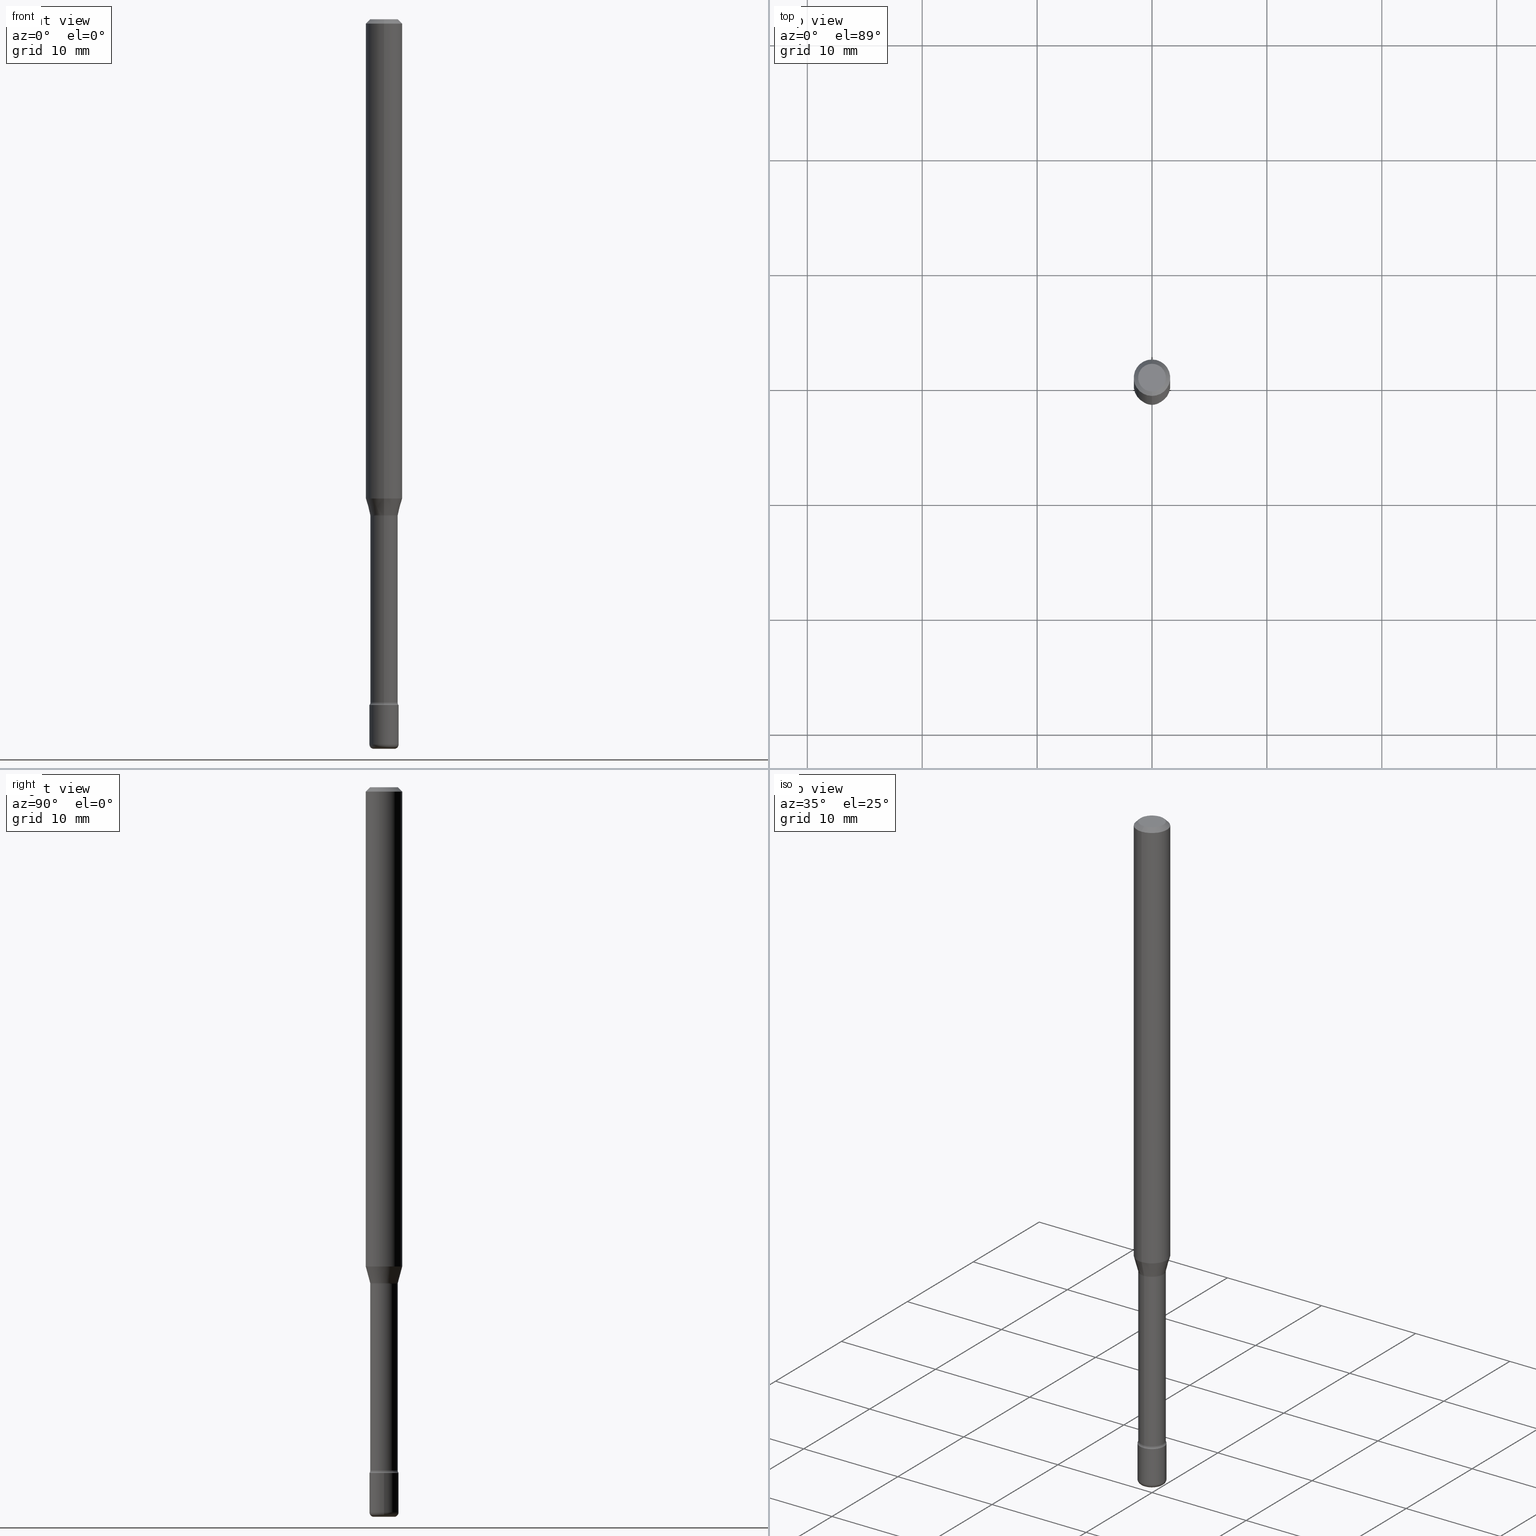
[diagram: canonical four-view strip — front | top / right | iso, engineering-drawing reading convention]
A machine part, canonical four-view strip (front | top / right | iso — engineering-drawing reading convention). The complete STEP part file that produces these views, byte-faithful:
ISO-10303-21;
HEADER;
FILE_DESCRIPTION (( 'STEP AP203' ),
    '1' );
FILE_NAME ('08864.STEP',
    '2024-03-06T20:06:44',
    ( '' ),
    ( '' ),
    'SwSTEP 2.0',
    'SolidWorks 2023',
    '' );
FILE_SCHEMA (( 'CONFIG_CONTROL_DESIGN' ));
ENDSEC;

DATA;
#1 = DIRECTION ( 'NONE',  ( -6.982962677686265133E-15, -1.000000000000000000, 5.463695987328526437E-15 ) ) ;
#2 = CARTESIAN_POINT ( 'NONE',  ( 0.000000000000000000, 0.000000000000000000, 0.000000000000000000 ) ) ;
#3 = TOROIDAL_SURFACE ( 'NONE', #170, 0.03500000000000000333, 0.01500000000000039496 ) ;
#4 = APPROVAL_ROLE ( '' ) ;
#5 = FACE_OUTER_BOUND ( 'NONE', #432, .T. ) ;
#6 = EDGE_CURVE ( 'NONE', #466, #341, #266, .T. ) ;
#7 = DIRECTION ( 'NONE',  ( -2.445468806185136597E-29, 3.491481338843145583E-15, 1.000000000000000000 ) ) ;
#8 = EDGE_LOOP ( 'NONE', ( #225, #57, #90, #558 ) ) ;
#9 = DATE_TIME_ROLE ( 'classification_date' ) ;
#10 = PLANE ( 'NONE',  #459 ) ;
#11 = EDGE_CURVE ( 'NONE', #84, #160, #204, .T. ) ;
#12 = AXIS2_PLACEMENT_3D ( 'NONE', #110, #457, #63 ) ;
#13 = CARTESIAN_POINT ( 'NONE',  ( -1.169113584055446105E-44, 1.669184350826100908E-30, 4.780733988912460139E-16 ) ) ;
#14 = ORIENTED_EDGE ( 'NONE', *, *, #350, .T. ) ;
#15 = ADVANCED_FACE ( 'NONE', ( #46 ), #229, .T. ) ;
#16 = DIRECTION ( 'NONE',  ( -2.445541428082492260E-29, 3.491377340152750324E-15, 1.000000000000000000 ) ) ;
#17 = DIRECTION ( 'NONE',  ( -6.982962677686266711E-15, -1.000000000000000000, 3.491481338843145583E-15 ) ) ;
#18 = DIRECTION ( 'NONE',  ( 1.000000000000000000, -7.105427357601001070E-15, 4.926314234925449358E-29 ) ) ;
#19 = VECTOR ( 'NONE', #181, 39.37007874015748143 ) ;
#20 = CARTESIAN_POINT ( 'NONE',  ( 3.446132268437060393E-16, 0.04699999999999183303, -2.341000000000000192 ) ) ;
#21 = CIRCLE ( 'NONE', #66, 0.04700000000000000705 ) ;
#22 = CC_DESIGN_APPROVAL ( #62, ( #132 ) ) ;
#23 = DIRECTION ( 'NONE',  ( -2.445541428082492260E-29, 3.491377340152750324E-15, 1.000000000000000000 ) ) ;
#24 = DIRECTION ( 'NONE',  ( 1.000000000000000000, -6.982962677686275388E-15, 0.000000000000000000 ) ) ;
#25 = CARTESIAN_POINT ( 'NONE',  ( 3.840629472727447874E-16, 0.04750000000000000749, -1.929345507921888683E-16 ) ) ;
#26 = PLANE ( 'NONE',  #555 ) ;
#27 = EDGE_LOOP ( 'NONE', ( #71, #482, #93, #513 ) ) ;
#28 = CARTESIAN_POINT ( 'NONE',  ( 4.152755561837019932E-29, -5.928681682223378846E-15, -1.698092501787273001 ) ) ;
#29 = CONICAL_SURFACE ( 'NONE', #390, 0.06250000000000000000, 0.7853981633974480570 ) ;
#30 = CC_DESIGN_SECURITY_CLASSIFICATION ( #392, ( #132 ) ) ;
#31 = ORIENTED_EDGE ( 'NONE', *, *, #296, .F. ) ;
#32 = DIRECTION ( 'NONE',  ( 2.445541428082492260E-29, -3.491377340152750324E-15, -1.000000000000000000 ) ) ;
#33 = EDGE_CURVE ( 'NONE', #138, #429, #403, .T. ) ;
#34 = ORIENTED_EDGE ( 'NONE', *, *, #142, .F. ) ;
#35 = APPROVAL_STATUS ( 'not_yet_approved' ) ;
#36 = EDGE_CURVE ( 'NONE', #429, #304, #105, .T. ) ;
#37 = ORIENTED_EDGE ( 'NONE', *, *, #296, .T. ) ;
#38 = CC_DESIGN_DATE_AND_TIME_ASSIGNMENT ( #542, #499, ( #279 ) ) ;
#39 = ORIENTED_EDGE ( 'NONE', *, *, #253, .F. ) ;
#40 = CIRCLE ( 'NONE', #338, 0.06250000000000000000 ) ;
#41 = ORIENTED_EDGE ( 'NONE', *, *, #36, .F. ) ;
#42 = APPLICATION_PROTOCOL_DEFINITION ( 'international standard', 'config_control_design', 1994, #353 ) ;
#43 = DIRECTION ( 'NONE',  ( -6.982962677686265922E-15, -1.000000000000000000, 5.749913744050246675E-15 ) ) ;
#44 = DIRECTION ( 'NONE',  ( 1.000000000000000000, -6.982962677686265922E-15, 4.876176775795936353E-29 ) ) ;
#45 = COORDINATED_UNIVERSAL_TIME_OFFSET ( 5, 0, .BEHIND. ) ;
#46 = FACE_OUTER_BOUND ( 'NONE', #564, .T. ) ;
#47 = AXIS2_PLACEMENT_3D ( 'NONE', #156, #515, #283 ) ;
#48 = PERSON_AND_ORGANIZATION ( #468, #446 ) ;
#49 = EDGE_CURVE ( 'NONE', #556, #233, #286, .T. ) ;
#50 = EDGE_LOOP ( 'NONE', ( #393, #295, #349, #215 ) ) ;
#51 = PERSON_AND_ORGANIZATION_ROLE ( 'design_supplier' ) ;
#52 = ORIENTED_EDGE ( 'NONE', *, *, #402, .T. ) ;
#53 = DIRECTION ( 'NONE',  ( -2.445541428082492260E-29, 3.491377340152750324E-15, 1.000000000000000000 ) ) ;
#54 = DIRECTION ( 'NONE',  ( -1.000000000000000000, 6.982962677686265922E-15, -4.876176775795935793E-29 ) ) ;
#55 = ADVANCED_FACE ( 'NONE', ( #447 ), #29, .T. ) ;
#56 = CIRCLE ( 'NONE', #382, 0.03500000000000000333 ) ;
#57 = ORIENTED_EDGE ( 'NONE', *, *, #362, .T. ) ;
#58 = FACE_OUTER_BOUND ( 'NONE', #166, .T. ) ;
#59 = DIRECTION ( 'NONE',  ( -6.982962677686265922E-15, -1.000000000000000000, 3.491377340152751112E-15 ) ) ;
#60 = CARTESIAN_POINT ( 'NONE',  ( 5.746851694535070554E-29, -8.204981146281391784E-15, -2.350000000000000089 ) ) ;
#61 = CARTESIAN_POINT ( 'NONE',  ( 6.076989983370064174E-29, -8.676331127025216680E-15, -2.484999999999999876 ) ) ;
#62 = APPROVAL ( #96, 'UNSPECIFIED' ) ;
#63 = DIRECTION ( 'NONE',  ( -6.982962677686265133E-15, -1.000000000000000000, 5.463695987328526437E-15 ) ) ;
#64 = CLOSED_SHELL ( 'NONE', ( #201, #507, #473, #569, #235, #306, #331, #342, #55, #321, #384, #243, #269, #524 ) ) ;
#65 = CARTESIAN_POINT ( 'NONE',  ( -1.169113584055446105E-44, 1.669184350826100908E-30, 4.780733988912460139E-16 ) ) ;
#66 = AXIS2_PLACEMENT_3D ( 'NONE', #194, #244, #456 ) ;
#67 = AXIS2_PLACEMENT_3D ( 'NONE', #532, #470, #85 ) ;
#68 = DIRECTION ( 'NONE',  ( -6.982962677686265922E-15, -1.000000000000000000, 3.491377340152750324E-15 ) ) ;
#69 = DIRECTION ( 'NONE',  ( -6.982962677686265922E-15, -1.000000000000000000, 5.749913744050246675E-15 ) ) ;
#70 = CYLINDRICAL_SURFACE ( 'NONE', #540, 0.04700000000000000705 ) ;
#71 = ORIENTED_EDGE ( 'NONE', *, *, #362, .F. ) ;
#72 = FACE_OUTER_BOUND ( 'NONE', #27, .T. ) ;
#73 = ORIENTED_EDGE ( 'NONE', *, *, #561, .F. ) ;
#74 = EDGE_CURVE ( 'NONE', #304, #429, #364, .T. ) ;
#75 =( CONVERSION_BASED_UNIT ( 'INCH', #256 ) LENGTH_UNIT ( ) NAMED_UNIT ( #81 ) );
#76 = AXIS2_PLACEMENT_3D ( 'NONE', #371, #102, #453 ) ;
#77 = DIRECTION ( 'NONE',  ( -2.445468806185136597E-29, 3.491481338843145583E-15, 1.000000000000000000 ) ) ;
#78 = CIRCLE ( 'NONE', #67, 0.04750000000000000749 ) ;
#79 = ORIENTED_EDGE ( 'NONE', *, *, #153, .T. ) ;
#80 = PERSON_AND_ORGANIZATION ( #468, #446 ) ;
#81 = DIMENSIONAL_EXPONENTS ( 1.000000000000000000, 0.000000000000000000, 0.000000000000000000, 0.000000000000000000, 0.000000000000000000, 0.000000000000000000, 0.000000000000000000 ) ;
#82 = ORIENTED_EDGE ( 'NONE', *, *, #74, .T. ) ;
#83 = DIRECTION ( 'NONE',  ( -6.982962677686265922E-15, -1.000000000000000000, 3.491377340152750324E-15 ) ) ;
#84 = VERTEX_POINT ( 'NONE', #355 ) ;
#85 = DIRECTION ( 'NONE',  ( -6.982962677686265133E-15, -1.000000000000000000, 3.491377340152749929E-15 ) ) ;
#86 = AXIS2_PLACEMENT_3D ( 'NONE', #326, #410, #54 ) ;
#87 = VERTEX_POINT ( 'NONE', #131 ) ;
#88 = ORIENTED_EDGE ( 'NONE', *, *, #258, .F. ) ;
#89 = PERSON_AND_ORGANIZATION ( #468, #446 ) ;
#90 = ORIENTED_EDGE ( 'NONE', *, *, #137, .F. ) ;
#91 = EDGE_CURVE ( 'NONE', #336, #138, #380, .T. ) ;
#92 = ORIENTED_EDGE ( 'NONE', *, *, #101, .F. ) ;
#93 = ORIENTED_EDGE ( 'NONE', *, *, #197, .T. ) ;
#94 = AXIS2_PLACEMENT_3D ( 'NONE', #247, #463, #69 ) ;
#95 = AXIS2_PLACEMENT_3D ( 'NONE', #354, #568, #559 ) ;
#96 = APPROVAL_STATUS ( 'not_yet_approved' ) ;
#97 = EDGE_LOOP ( 'NONE', ( #52, #562, #313, #210 ) ) ;
#98 = DIRECTION ( 'NONE',  ( -2.445541428082492260E-29, 3.491377340152750324E-15, 1.000000000000000000 ) ) ;
#99 = APPROVAL_DATE_TIME ( #443, #62 ) ;
#100 = ADVANCED_FACE ( 'NONE', ( #221 ), #397, .T. ) ;
#101 = EDGE_CURVE ( 'NONE', #87, #139, #177, .T. ) ;
#102 = DIRECTION ( 'NONE',  ( -2.445468806185136597E-29, 3.491481338843145583E-15, 1.000000000000000000 ) ) ;
#103 = CALENDAR_DATE ( 2024, 6, 3 ) ;
#104 = DIRECTION ( 'NONE',  ( -2.445468806185136597E-29, 3.491481338843145583E-15, 1.000000000000000000 ) ) ;
#105 = CIRCLE ( 'NONE', #316, 0.04700000000000000705 ) ;
#106 = AXIS2_PLACEMENT_3D ( 'NONE', #411, #236, #188 ) ;
#107 = CARTESIAN_POINT ( 'NONE',  ( -3.281992458511972621E-16, -0.04700000000000817413, -2.340999999999999748 ) ) ;
#108 = EDGE_CURVE ( 'NONE', #476, #139, #366, .T. ) ;
#109 = CARTESIAN_POINT ( 'NONE',  ( 4.440892098500625669E-16, 0.06250000000000000000, 2.598623151316991680E-16 ) ) ;
#110 = CARTESIAN_POINT ( 'NONE',  ( 5.747022355993856728E-29, -8.204736749358963615E-15, -2.350000000000000089 ) ) ;
#111 = DIRECTION ( 'NONE',  ( -2.445541428082492260E-29, 3.491377340152750324E-15, 1.000000000000000000 ) ) ;
#112 = DIRECTION ( 'NONE',  ( 6.982962677686265922E-15, 1.000000000000000000, -3.491377340152750324E-15 ) ) ;
#113 = CIRCLE ( 'NONE', #12, 0.05000000000000000278 ) ;
#114 = AXIS2_PLACEMENT_3D ( 'NONE', #351, #32, #484 ) ;
#115 = EDGE_LOOP ( 'NONE', ( #73, #345, #248, #273 ) ) ;
#116 = DIRECTION ( 'NONE',  ( -2.445541428082492260E-29, 3.491377340152750324E-15, 1.000000000000000000 ) ) ;
#117 = EDGE_CURVE ( 'NONE', #255, #87, #552, .T. ) ;
#118 = ORIENTED_EDGE ( 'NONE', *, *, #108, .T. ) ;
#119 = DIRECTION ( 'NONE',  ( -2.445541428082492260E-29, 3.491377340152750324E-15, 1.000000000000000000 ) ) ;
#120 = ORIENTED_EDGE ( 'NONE', *, *, #399, .F. ) ;
#121 = CIRCLE ( 'NONE', #365, 0.05000000000000000278 ) ;
#122 = DIRECTION ( 'NONE',  ( -2.445468806185136877E-29, 3.491481338843145188E-15, 1.000000000000000000 ) ) ;
#123 = LOCAL_TIME ( 15, 6, 44.00000000000000000, #347 ) ;
#124 = EDGE_LOOP ( 'NONE', ( #14, #162, #41, #469 ) ) ;
#125 = DATE_AND_TIME ( #525, #123 ) ;
#126 = CARTESIAN_POINT ( 'NONE',  ( 4.152755561837019932E-29, -5.928681682223378846E-15, -1.698092501787273001 ) ) ;
#127 = ORIENTED_EDGE ( 'NONE', *, *, #566, .T. ) ;
#128 = FACE_OUTER_BOUND ( 'NONE', #115, .T. ) ;
#129 = ORIENTED_EDGE ( 'NONE', *, *, #173, .T. ) ;
#130 = TOROIDAL_SURFACE ( 'NONE', #407, 0.06200000000000004813, 0.01500000000000004281 ) ;
#131 = CARTESIAN_POINT ( 'NONE',  ( -4.364351673553512403E-16, -0.06250000000000568989, -1.642153212482682312 ) ) ;
#132 = PRODUCT_DEFINITION_FORMATION_WITH_SPECIFIED_SOURCE ( 'ANY', '', #546, .NOT_KNOWN. ) ;
#133 = APPLICATION_PROTOCOL_DEFINITION ( 'international standard', 'config_control_design', 1994, #536 ) ;
#134 = ADVANCED_FACE ( 'NONE', ( #369 ), #10, .T. ) ;
#135 = ORIENTED_EDGE ( 'NONE', *, *, #219, .F. ) ;
#136 = DIRECTION ( 'NONE',  ( 6.982962677686265922E-15, 1.000000000000000000, -3.483106191921935554E-15 ) ) ;
#137 = EDGE_CURVE ( 'NONE', #341, #389, #212, .T. ) ;
#138 = VERTEX_POINT ( 'NONE', #107 ) ;
#139 = VERTEX_POINT ( 'NONE', #237 ) ;
#140 = UNCERTAINTY_MEASURE_WITH_UNIT (LENGTH_MEASURE( 1.000000000000000082E-05 ), #75, 'distance_accuracy_value', 'NONE');
#141 = VECTOR ( 'NONE', #169, 39.37007874015748143 ) ;
#142 = EDGE_CURVE ( 'NONE', #336, #304, #412, .T. ) ;
#143 = CARTESIAN_POINT ( 'NONE',  ( -4.364351673553916201E-16, -0.06250000000000000000, 6.962844826507930571E-16 ) ) ;
#144 = APPROVAL_ROLE ( '' ) ;
#145 = ORIENTED_EDGE ( 'NONE', *, *, #219, .T. ) ;
#146 = DIRECTION ( 'NONE',  ( -2.438088387897960049E-29, 3.491481338843145188E-15, 1.000000000000000000 ) ) ;
#147 = DESIGN_CONTEXT ( 'detailed design', #536, 'design' ) ;
#148 = CARTESIAN_POINT ( 'NONE',  ( 3.668312142123745187E-31, -5.237066010229135864E-17, -0.01500000000000002720 ) ) ;
#149 = AXIS2_PLACEMENT_3D ( 'NONE', #303, #335, #478 ) ;
#150 = CC_DESIGN_APPROVAL ( #176, ( #279 ) ) ;
#151 = CARTESIAN_POINT ( 'NONE',  ( 6.629452896351596937E-46, -9.454610252272620531E-32, -2.709412713493322385E-17 ) ) ;
#152 = LINE ( 'NONE', #143, #373 ) ;
#153 = EDGE_CURVE ( 'NONE', #336, #556, #270, .T. ) ;
#154 = DIRECTION ( 'NONE',  ( -2.445541428082491980E-29, 3.491377340152750324E-15, 1.000000000000000000 ) ) ;
#155 = DIRECTION ( 'NONE',  ( 1.000000000000000000, -6.982962677686265922E-15, 4.876176775795935793E-29 ) ) ;
#156 = CARTESIAN_POINT ( 'NONE',  ( 4.152755561837019932E-29, -5.928681682223378846E-15, -1.698092501787273001 ) ) ;
#157 = ORIENTED_EDGE ( 'NONE', *, *, #108, .F. ) ;
#158 = CIRCLE ( 'NONE', #327, 0.03500000000000000333 ) ;
#159 = DIRECTION ( 'NONE',  ( -6.982962677686265922E-15, -1.000000000000000000, 5.749913744050246675E-15 ) ) ;
#160 = VERTEX_POINT ( 'NONE', #190 ) ;
#161 = FACE_OUTER_BOUND ( 'NONE', #526, .T. ) ;
#162 = ORIENTED_EDGE ( 'NONE', *, *, #142, .T. ) ;
#163 = FACE_OUTER_BOUND ( 'NONE', #315, .T. ) ;
#164 = DIRECTION ( 'NONE',  ( -2.445541428082492260E-29, 3.491377340152750324E-15, 1.000000000000000000 ) ) ;
#165 = ADVANCED_FACE ( 'NONE', ( #509 ), #184, .T. ) ;
#166 = EDGE_LOOP ( 'NONE', ( #120, #31 ) ) ;
#167 = APPROVAL_ROLE ( '' ) ;
#168 = AXIS2_PLACEMENT_3D ( 'NONE', #65, #520, #394 ) ;
#169 = DIRECTION ( 'NONE',  ( -2.445468806185136877E-29, 3.491481338843145188E-15, 1.000000000000000000 ) ) ;
#170 = AXIS2_PLACEMENT_3D ( 'NONE', #391, #428, #252 ) ;
#171 = ORIENTED_EDGE ( 'NONE', *, *, #36, .T. ) ;
#172 = ORIENTED_EDGE ( 'NONE', *, *, #153, .F. ) ;
#173 = EDGE_CURVE ( 'NONE', #200, #388, #121, .T. ) ;
#174 = DIRECTION ( 'NONE',  ( 2.445541428082492260E-29, -3.491377340152750324E-15, -1.000000000000000000 ) ) ;
#175 = MECHANICAL_CONTEXT ( 'NONE', #353, 'mechanical' ) ;
#176 = APPROVAL ( #35, 'UNSPECIFIED' ) ;
#177 = CIRCLE ( 'NONE', #414, 0.06250000000000000000 ) ;
#178 = AXIS2_PLACEMENT_3D ( 'NONE', #151, #505, #281 ) ;
#179 = CARTESIAN_POINT ( 'NONE',  ( 4.162249852294645006E-29, -5.942236206462443190E-15, -1.701974787463810923 ) ) ;
#180 = AXIS2_PLACEMENT_3D ( 'NONE', #217, #474, #263 ) ;
#181 = DIRECTION ( 'NONE',  ( -2.445541428082492260E-29, 3.491377340152750324E-15, 1.000000000000000000 ) ) ;
#182 = DIRECTION ( 'NONE',  ( -2.445541428082492260E-29, 3.491377340152750324E-15, 1.000000000000000000 ) ) ;
#183 = DIRECTION ( 'NONE',  ( -6.982962677686265922E-15, -1.000000000000000000, 4.370956789862821150E-15 ) ) ;
#184 = TOROIDAL_SURFACE ( 'NONE', #76, 0.03500000000000000333, 0.01500000000000039496 ) ;
#185 = CC_DESIGN_APPROVAL ( #511, ( #392 ) ) ;
#186 = CALENDAR_DATE ( 2024, 6, 3 ) ;
#187 = DIRECTION ( 'NONE',  ( -2.445541428082492260E-29, 3.491377340152750324E-15, 1.000000000000000000 ) ) ;
#188 = DIRECTION ( 'NONE',  ( -6.982962677686265922E-15, -1.000000000000000000, 3.491377340152750324E-15 ) ) ;
#189 = EDGE_CURVE ( 'NONE', #255, #429, #531, .T. ) ;
#190 = CARTESIAN_POINT ( 'NONE',  ( -0.05000000000000020400, -8.321059759145164694E-15, -2.484999999999999876 ) ) ;
#191 = AXIS2_PLACEMENT_3D ( 'NONE', #400, #7, #44 ) ;
#192 = AXIS2_PLACEMENT_3D ( 'NONE', #376, #553, #112 ) ;
#193 = APPROVAL_PERSON_ORGANIZATION ( #489, #62, #144 ) ;
#194 = CARTESIAN_POINT ( 'NONE',  ( 5.725012483141114982E-29, -8.173314353297587961E-15, -2.341000000000000192 ) ) ;
#195 = CARTESIAN_POINT ( 'NONE',  ( 4.015953712385151571E-29, -5.733376515121082978E-15, -1.642153212482682756 ) ) ;
#196 = ADVANCED_FACE ( 'NONE', ( #58 ), #280, .T. ) ;
#197 = EDGE_CURVE ( 'NONE', #87, #341, #152, .T. ) ;
#198 = CARTESIAN_POINT ( 'NONE',  ( 4.440892098501030453E-16, 0.06249999999999995143, -0.01500000000000024578 ) ) ;
#199 = DIRECTION ( 'NONE',  ( -6.982962677686265922E-15, -1.000000000000000000, 3.491377340152750324E-15 ) ) ;
#200 = VERTEX_POINT ( 'NONE', #506 ) ;
#201 = ADVANCED_FACE ( 'NONE', ( #234 ), #565, .F. ) ;
#202 = DIRECTION ( 'NONE',  ( 1.000000000000000000, -6.982962677686213068E-15, 0.000000000000000000 ) ) ;
#203 = ORIENTED_EDGE ( 'NONE', *, *, #49, .T. ) ;
#204 = CIRCLE ( 'NONE', #547, 0.01500000000000039496 ) ;
#205 = TOROIDAL_SURFACE ( 'NONE', #106, 0.06200000000000004813, 0.01500000000000004281 ) ;
#206 = CARTESIAN_POINT ( 'NONE',  ( 6.076989983370064174E-29, -8.676331127025216680E-15, -2.484999999999999876 ) ) ;
#207 = ORIENTED_EDGE ( 'NONE', *, *, #216, .T. ) ;
#208 = ORIENTED_EDGE ( 'NONE', *, *, #399, .T. ) ;
#209 = CARTESIAN_POINT ( 'NONE',  ( 5.724842475279404612E-29, -8.173557814231803142E-15, -2.341000000000000192 ) ) ;
#210 = ORIENTED_EDGE ( 'NONE', *, *, #301, .F. ) ;
#211 = FACE_OUTER_BOUND ( 'NONE', #421, .T. ) ;
#212 = CIRCLE ( 'NONE', #539, 0.06250000000000000000 ) ;
#213 = CIRCLE ( 'NONE', #398, 0.05000000000000000278 ) ;
#214 = LOCAL_TIME ( 15, 6, 44.00000000000000000, #401 ) ;
#215 = ORIENTED_EDGE ( 'NONE', *, *, #529, .T. ) ;
#216 = EDGE_CURVE ( 'NONE', #233, #556, #113, .T. ) ;
#217 = CARTESIAN_POINT ( 'NONE',  ( 0.000000000000000000, 0.000000000000000000, 0.000000000000000000 ) ) ;
#218 = VERTEX_POINT ( 'NONE', #500 ) ;
#219 = EDGE_CURVE ( 'NONE', #388, #200, #213, .T. ) ;
#220 =( LENGTH_UNIT ( ) NAMED_UNIT ( * ) SI_UNIT ( $, .METRE. ) );
#221 = FACE_OUTER_BOUND ( 'NONE', #97, .T. ) ;
#222 = CALENDAR_DATE ( 2024, 6, 3 ) ;
#223 = EDGE_LOOP ( 'NONE', ( #486, #118, #92, #289 ) ) ;
#224 = CALENDAR_DATE ( 2024, 6, 3 ) ;
#225 = ORIENTED_EDGE ( 'NONE', *, *, #101, .T. ) ;
#226 = CC_DESIGN_PERSON_AND_ORGANIZATION_ASSIGNMENT ( #89, #323, ( #392 ) ) ;
#227 = ORIENTED_EDGE ( 'NONE', *, *, #359, .F. ) ;
#228 = COORDINATED_UNIVERSAL_TIME_OFFSET ( 5, 0, .BEHIND. ) ;
#229 = CYLINDRICAL_SURFACE ( 'NONE', #191, 0.04999999999999999584 ) ;
#230 = CLOSED_SHELL ( 'NONE', ( #100, #165, #134, #196, #535, #15 ) ) ;
#231 = DIRECTION ( 'NONE',  ( 7.105427357601001859E-15, 1.000000000000000000, 0.000000000000000000 ) ) ;
#232 = AXIS2_PLACEMENT_3D ( 'NONE', #13, #187, #544 ) ;
#233 = VERTEX_POINT ( 'NONE', #404 ) ;
#234 = FACE_OUTER_BOUND ( 'NONE', #343, .T. ) ;
#235 = ADVANCED_FACE ( 'NONE', ( #450 ), #408, .T. ) ;
#236 = DIRECTION ( 'NONE',  ( -2.445541428082492260E-29, 3.491377340152750324E-15, 1.000000000000000000 ) ) ;
#237 = CARTESIAN_POINT ( 'NONE',  ( 4.440892098501028481E-16, 0.06249999999999429623, -1.642153212482682978 ) ) ;
#238 = DIRECTION ( 'NONE',  ( -2.445468806185136597E-29, 3.491481338843145583E-15, 1.000000000000000000 ) ) ;
#239 = CARTESIAN_POINT ( 'NONE',  ( 5.746851694535070554E-29, -8.204981146281391784E-15, -2.350000000000000089 ) ) ;
#240 = AXIS2_PLACEMENT_3D ( 'NONE', #368, #18, #231 ) ;
#241 =( GEOMETRIC_REPRESENTATION_CONTEXT ( 3 ) GLOBAL_UNCERTAINTY_ASSIGNED_CONTEXT ( ( #140 ) ) GLOBAL_UNIT_ASSIGNED_CONTEXT ( ( #75, #433, #259 ) ) REPRESENTATION_CONTEXT ( 'NONE', 'WORKASPACE' ) );
#242 = CARTESIAN_POINT ( 'NONE',  ( -1.169113584055446105E-44, 1.669184350826100908E-30, 4.780733988912460139E-16 ) ) ;
#243 = ADVANCED_FACE ( 'NONE', ( #299 ), #130, .F. ) ;
#244 = DIRECTION ( 'NONE',  ( -2.445541428082492260E-29, 3.491377340152750324E-15, 1.000000000000000000 ) ) ;
#245 = CARTESIAN_POINT ( 'NONE',  ( 6.113672015462842613E-29, -8.728703347107864943E-15, -2.500000000000000000 ) ) ;
#246 = EDGE_LOOP ( 'NONE', ( #300, #292 ) ) ;
#247 = CARTESIAN_POINT ( 'NONE',  ( 4.152755561837019932E-29, -5.928681682223378846E-15, -1.698092501787273001 ) ) ;
#248 = ORIENTED_EDGE ( 'NONE', *, *, #137, .T. ) ;
#249 = AXIS2_PLACEMENT_3D ( 'NONE', #61, #238, #413 ) ;
#250 = CARTESIAN_POINT ( 'NONE',  ( 0.04999999999999999584, -3.491481338843132862E-16, 2.438088387897967896E-30 ) ) ;
#251 = ORIENTED_EDGE ( 'NONE', *, *, #488, .T. ) ;
#252 = DIRECTION ( 'NONE',  ( 1.000000000000000000, -6.982962677686258033E-15, 4.883557194083110098E-29 ) ) ;
#253 = EDGE_CURVE ( 'NONE', #160, #388, #294, .T. ) ;
#254 = FACE_OUTER_BOUND ( 'NONE', #223, .T. ) ;
#255 = VERTEX_POINT ( 'NONE', #377 ) ;
#256 = LENGTH_MEASURE_WITH_UNIT ( LENGTH_MEASURE( 0.02539999999999999897 ), #220 );
#257 = ORIENTED_EDGE ( 'NONE', *, *, #301, .T. ) ;
#258 = EDGE_CURVE ( 'NONE', #138, #233, #549, .T. ) ;
#259 =( NAMED_UNIT ( * ) SI_UNIT ( $, .STERADIAN. ) SOLID_ANGLE_UNIT ( ) );
#260 = CIRCLE ( 'NONE', #445, 0.01500000000000039496 ) ;
#261 = EDGE_CURVE ( 'NONE', #318, #389, #464, .T. ) ;
#262 = DIRECTION ( 'NONE',  ( -1.000000000000000000, 7.105427357600997914E-15, 0.000000000000000000 ) ) ;
#263 = DIRECTION ( 'NONE',  ( 1.000000000000000000, 0.000000000000000000, 0.000000000000000000 ) ) ;
#264 = ORIENTED_EDGE ( 'NONE', *, *, #117, .T. ) ;
#265 = PERSON_AND_ORGANIZATION_ROLE ( 'creator' ) ;
#266 = LINE ( 'NONE', #442, #406 ) ;
#267 = PERSON_AND_ORGANIZATION ( #468, #446 ) ;
#268 = EDGE_LOOP ( 'NONE', ( #129, #145 ) ) ;
#269 = ADVANCED_FACE ( 'NONE', ( #418 ), #70, .T. ) ;
#270 = CIRCLE ( 'NONE', #240, 0.01500000000000003587 ) ;
#271 = DIRECTION ( 'NONE',  ( -6.982962677686265922E-15, -1.000000000000000000, 5.812442539711197800E-15 ) ) ;
#272 = PERSON_AND_ORGANIZATION ( #468, #446 ) ;
#273 = ORIENTED_EDGE ( 'NONE', *, *, #261, .F. ) ;
#274 = CARTESIAN_POINT ( 'NONE',  ( 5.725012483141114982E-29, -8.173314353297587961E-15, -2.341000000000000192 ) ) ;
#275 = DIRECTION ( 'NONE',  ( -2.445468806185136597E-29, 3.491481338843145583E-15, 1.000000000000000000 ) ) ;
#276 = SECURITY_CLASSIFICATION_LEVEL ( 'unclassified' ) ;
#277 = CARTESIAN_POINT ( 'NONE',  ( -4.329436860165069019E-16, -0.06200000000000594619, -1.701974787463810701 ) ) ;
#278 = CIRCLE ( 'NONE', #523, 0.04999999999999999584 ) ;
#279 = PRODUCT_DEFINITION ( 'UNKNOWN', '', #132, #147 ) ;
#280 = PLANE ( 'NONE',  #86 ) ;
#281 = DIRECTION ( 'NONE',  ( -6.982962677686265133E-15, -1.000000000000000000, 3.491377340152749929E-15 ) ) ;
#282 = DIRECTION ( 'NONE',  ( -1.000000000000000000, 6.982962677686265922E-15, -4.883557194083112340E-29 ) ) ;
#283 = DIRECTION ( 'NONE',  ( -6.982962677686265922E-15, -1.000000000000000000, 5.749913744050246675E-15 ) ) ;
#284 = CC_DESIGN_PERSON_AND_ORGANIZATION_ASSIGNMENT ( #448, #51, ( #132 ) ) ;
#285 = DIRECTION ( 'NONE',  ( -6.982962677686267499E-15, -1.000000000000000000, 0.000000000000000000 ) ) ;
#286 = CIRCLE ( 'NONE', #521, 0.05000000000000000278 ) ;
#287 = AXIS2_PLACEMENT_3D ( 'NONE', #126, #481, #43 ) ;
#288 = DIRECTION ( 'NONE',  ( -2.445541428082492260E-29, 3.491377340152750324E-15, 1.000000000000000000 ) ) ;
#289 = ORIENTED_EDGE ( 'NONE', *, *, #117, .F. ) ;
#290 = CARTESIAN_POINT ( 'NONE',  ( 0.03500000000000000333, -8.920734820744236646E-15, -2.484999999999999876 ) ) ;
#291 = DIRECTION ( 'NONE',  ( -6.982962677686265922E-15, -1.000000000000000000, 3.491377340152749929E-15 ) ) ;
#292 = ORIENTED_EDGE ( 'NONE', *, *, #49, .F. ) ;
#293 = CARTESIAN_POINT ( 'NONE',  ( 4.015953712385151571E-29, -5.733376515121082978E-15, -1.642153212482682756 ) ) ;
#294 = LINE ( 'NONE', #344, #141 ) ;
#295 = ORIENTED_EDGE ( 'NONE', *, *, #485, .F. ) ;
#296 = EDGE_CURVE ( 'NONE', #84, #218, #158, .T. ) ;
#297 = CONICAL_SURFACE ( 'NONE', #287, 0.04751111260566399236, 0.2617993877991509066 ) ;
#298 = LOCAL_TIME ( 15, 6, 44.00000000000000000, #320 ) ;
#299 = FACE_OUTER_BOUND ( 'NONE', #381, .T. ) ;
#300 = ORIENTED_EDGE ( 'NONE', *, *, #216, .F. ) ;
#301 = EDGE_CURVE ( 'NONE', #471, #200, #340, .T. ) ;
#302 = APPROVAL_DATE_TIME ( #125, #176 ) ;
#303 = CARTESIAN_POINT ( 'NONE',  ( -4.329436860164915685E-16, -0.06200000000000822215, -2.340999999999999748 ) ) ;
#304 = VERTEX_POINT ( 'NONE', #475 ) ;
#305 = CARTESIAN_POINT ( 'NONE',  ( 3.552713678801077488E-16, 0.04999999999999183570, -2.350000000000000533 ) ) ;
#306 = ADVANCED_FACE ( 'NONE', ( #254 ), #297, .T. ) ;
#307 = ORIENTED_EDGE ( 'NONE', *, *, #359, .T. ) ;
#308 = AXIS2_PLACEMENT_3D ( 'NONE', #314, #98, #271 ) ;
#309 = AXIS2_PLACEMENT_3D ( 'NONE', #293, #288, #383 ) ;
#310 = DIRECTION ( 'NONE',  ( -6.982962677686265922E-15, -1.000000000000000000, 5.812442539711197800E-15 ) ) ;
#311 = APPROVAL_STATUS ( 'not_yet_approved' ) ;
#312 = ORIENTED_EDGE ( 'NONE', *, *, #350, .F. ) ;
#313 = ORIENTED_EDGE ( 'NONE', *, *, #173, .F. ) ;
#314 = CARTESIAN_POINT ( 'NONE',  ( 4.162249852294645006E-29, -5.942236206462443190E-15, -1.701974787463810923 ) ) ;
#315 = EDGE_LOOP ( 'NONE', ( #522, #385, #491, #171 ) ) ;
#316 = AXIS2_PLACEMENT_3D ( 'NONE', #179, #53, #570 ) ;
#317 = VECTOR ( 'NONE', #122, 39.37007874015748143 ) ;
#318 = VERTEX_POINT ( 'NONE', #25 ) ;
#319 = AXIS2_PLACEMENT_3D ( 'NONE', #527, #572, #83 ) ;
#320 = COORDINATED_UNIVERSAL_TIME_OFFSET ( 5, 0, .BEHIND. ) ;
#321 = ADVANCED_FACE ( 'NONE', ( #5 ), #420, .F. ) ;
#322 = CARTESIAN_POINT ( 'NONE',  ( 3.339550858072470388E-16, 0.04700000000000000705, 3.139786639040668225E-16 ) ) ;
#323 = PERSON_AND_ORGANIZATION_ROLE ( 'classification_officer' ) ;
#324 = MANIFOLD_SOLID_BREP ( 'Body-Move/Copy2[2]', #64 ) ;
#325 = DIRECTION ( 'NONE',  ( -6.982962677686265922E-15, -1.000000000000000000, 3.483106191921935554E-15 ) ) ;
#326 = CARTESIAN_POINT ( 'NONE',  ( 2.444036937190804617E-16, 0.03499999999999127420, -2.500000000000000000 ) ) ;
#327 = AXIS2_PLACEMENT_3D ( 'NONE', #245, #77, #560 ) ;
#328 = CONICAL_SURFACE ( 'NONE', #114, 0.06250000000000000000, 0.7853981633974480570 ) ;
#329 = FACE_OUTER_BOUND ( 'NONE', #419, .T. ) ;
#330 = DIRECTION ( 'NONE',  ( -2.445541428082492260E-29, 3.491377340152750324E-15, 1.000000000000000000 ) ) ;
#331 = ADVANCED_FACE ( 'NONE', ( #329 ), #437, .T. ) ;
#332 = DIRECTION ( 'NONE',  ( -2.445468806185136597E-29, 3.491481338843145583E-15, 1.000000000000000000 ) ) ;
#333 = CARTESIAN_POINT ( 'NONE',  ( 3.375867592983882159E-16, 0.04751111260565806654, -1.698092501787273223 ) ) ;
#334 = CARTESIAN_POINT ( 'NONE',  ( -4.364351673553912750E-16, -0.06250000000000005551, -0.01499999999999981036 ) ) ;
#335 = DIRECTION ( 'NONE',  ( -1.000000000000000000, 6.982962677686265922E-15, -4.883557194083112340E-29 ) ) ;
#336 = VERTEX_POINT ( 'NONE', #20 ) ;
#337 = VECTOR ( 'NONE', #387, 39.37007874015748143 ) ;
#338 = AXIS2_PLACEMENT_3D ( 'NONE', #396, #480, #386 ) ;
#339 = LINE ( 'NONE', #109, #512 ) ;
#340 = LINE ( 'NONE', #250, #317 ) ;
#341 = VERTEX_POINT ( 'NONE', #334 ) ;
#342 = ADVANCED_FACE ( 'NONE', ( #72 ), #458, .T. ) ;
#343 = EDGE_LOOP ( 'NONE', ( #227, #127, #82, #360 ) ) ;
#344 = CARTESIAN_POINT ( 'NONE',  ( -0.04999999999999999584, 3.552713678800500634E-16, -2.459467545127452961E-30 ) ) ;
#345 = ORIENTED_EDGE ( 'NONE', *, *, #6, .T. ) ;
#346 = CIRCLE ( 'NONE', #309, 0.06250000000000000000 ) ;
#347 = COORDINATED_UNIVERSAL_TIME_OFFSET ( 5, 0, .BEHIND. ) ;
#348 = LOCAL_TIME ( 15, 6, 44.00000000000000000, #45 ) ;
#349 = ORIENTED_EDGE ( 'NONE', *, *, #261, .T. ) ;
#350 = EDGE_CURVE ( 'NONE', #138, #336, #21, .T. ) ;
#351 = CARTESIAN_POINT ( 'NONE',  ( 3.668312142123745187E-31, -5.237066010229135864E-17, -0.01500000000000002720 ) ) ;
#352 = CARTESIAN_POINT ( 'NONE',  ( 5.747022355993856728E-29, -8.204736749358963615E-15, -2.350000000000000089 ) ) ;
#353 = APPLICATION_CONTEXT ( 'configuration controlled 3d designs of mechanical parts and assemblies' ) ;
#354 = CARTESIAN_POINT ( 'NONE',  ( 4.405364961713037245E-16, 0.06199999999999406680, -1.701974787463811145 ) ) ;
#355 = CARTESIAN_POINT ( 'NONE',  ( -0.03500000000000000333, -8.400536574368497570E-15, -2.500000000000000000 ) ) ;
#356 = PERSON_AND_ORGANIZATION_ROLE ( 'design_owner' ) ;
#357 = AXIS2_PLACEMENT_3D ( 'NONE', #28, #111, #159 ) ;
#358 = DIRECTION ( 'NONE',  ( -2.445468806185136597E-29, 3.491481338843145583E-15, 1.000000000000000000 ) ) ;
#359 = EDGE_CURVE ( 'NONE', #476, #255, #483, .T. ) ;
#360 = ORIENTED_EDGE ( 'NONE', *, *, #189, .F. ) ;
#361 = DIRECTION ( 'NONE',  ( -4.851104656540962697E-15, -0.7071067811865497932, -0.7071067811865452413 ) ) ;
#362 = EDGE_CURVE ( 'NONE', #139, #389, #339, .T. ) ;
#363 = PERSON_AND_ORGANIZATION_ROLE ( 'creator' ) ;
#364 = CIRCLE ( 'NONE', #308, 0.04700000000000000705 ) ;
#365 = AXIS2_PLACEMENT_3D ( 'NONE', #550, #104, #454 ) ;
#366 = LINE ( 'NONE', #333, #493 ) ;
#367 = PRODUCT_DEFINITION_SHAPE ( 'NONE', 'NONE',  #279 ) ;
#368 = CARTESIAN_POINT ( 'NONE',  ( 4.405364961713196496E-16, 0.06199999999999188105, -2.341000000000000192 ) ) ;
#369 = FACE_OUTER_BOUND ( 'NONE', #268, .T. ) ;
#370 = DIRECTION ( 'NONE',  ( 1.000000000000000000, -6.982962677686276966E-15, 0.000000000000000000 ) ) ;
#371 = CARTESIAN_POINT ( 'NONE',  ( 6.076989983370064174E-29, -8.676331127025216680E-15, -2.484999999999999876 ) ) ;
#372 = EDGE_CURVE ( 'NONE', #218, #471, #260, .T. ) ;
#373 = VECTOR ( 'NONE', #330, 39.37007874015748143 ) ;
#374 = FACE_OUTER_BOUND ( 'NONE', #246, .T. ) ;
#375 = DIRECTION ( 'NONE',  ( -2.445541428082492260E-29, 3.491377340152750324E-15, 1.000000000000000000 ) ) ;
#376 = CARTESIAN_POINT ( 'NONE',  ( 3.316907271900976589E-16, 0.04750000000000000749, 5.964921222090073982E-17 ) ) ;
#377 = CARTESIAN_POINT ( 'NONE',  ( -3.317683261006595792E-16, -0.04751111260566991817, -1.698092501787272779 ) ) ;
#378 = CARTESIAN_POINT ( 'NONE',  ( 3.491481338843707252E-16, 0.04999999999999180100, -2.350000000000000533 ) ) ;
#379 = CARTESIAN_POINT ( 'NONE',  ( 4.364351673553919652E-16, 0.06249999999999995143, -0.01500000000000024578 ) ) ;
#380 = CIRCLE ( 'NONE', #424, 0.04700000000000000705 ) ;
#381 = EDGE_LOOP ( 'NONE', ( #172, #312, #409, #207 ) ) ;
#382 = AXIS2_PLACEMENT_3D ( 'NONE', #417, #467, #370 ) ;
#383 = DIRECTION ( 'NONE',  ( -6.982962677686265922E-15, -1.000000000000000000, 4.370956789862821150E-15 ) ) ;
#384 = ADVANCED_FACE ( 'NONE', ( #374 ), #26, .F. ) ;
#385 = ORIENTED_EDGE ( 'NONE', *, *, #455, .F. ) ;
#386 = DIRECTION ( 'NONE',  ( -6.982962677686265922E-15, -1.000000000000000000, 3.483106191921935554E-15 ) ) ;
#387 = DIRECTION ( 'NONE',  ( 4.937700262164546464E-15, 0.7071067811865449082, -0.7071067811865501263 ) ) ;
#388 = VERTEX_POINT ( 'NONE', #554 ) ;
#389 = VERTEX_POINT ( 'NONE', #198 ) ;
#390 = AXIS2_PLACEMENT_3D ( 'NONE', #534, #174, #136 ) ;
#391 = CARTESIAN_POINT ( 'NONE',  ( 6.076989983370064174E-29, -8.676331127025216680E-15, -2.484999999999999876 ) ) ;
#392 = SECURITY_CLASSIFICATION ( '', '', #276 ) ;
#393 = ORIENTED_EDGE ( 'NONE', *, *, #6, .F. ) ;
#394 = DIRECTION ( 'NONE',  ( -6.982962677686265922E-15, -1.000000000000000000, 3.491377340152749929E-15 ) ) ;
#395 = CARTESIAN_POINT ( 'NONE',  ( -3.281992458512545531E-16, -0.04700000000000000705, 6.421681338784253533E-16 ) ) ;
#396 = CARTESIAN_POINT ( 'NONE',  ( 3.668312142123745187E-31, -5.237066010229135864E-17, -0.01500000000000002720 ) ) ;
#397 = CYLINDRICAL_SURFACE ( 'NONE', #501, 0.04999999999999999584 ) ;
#398 = AXIS2_PLACEMENT_3D ( 'NONE', #239, #275, #415 ) ;
#399 = EDGE_CURVE ( 'NONE', #218, #84, #56, .T. ) ;
#400 = CARTESIAN_POINT ( 'NONE',  ( 0.000000000000000000, 0.000000000000000000, 0.000000000000000000 ) ) ;
#401 = COORDINATED_UNIVERSAL_TIME_OFFSET ( 5, 0, .BEHIND. ) ;
#402 = EDGE_CURVE ( 'NONE', #471, #160, #278, .T. ) ;
#403 = LINE ( 'NONE', #395, #19 ) ;
#404 = CARTESIAN_POINT ( 'NONE',  ( -3.491481338842560938E-16, -0.05000000000000824618, -2.349999999999999645 ) ) ;
#405 = CC_DESIGN_PERSON_AND_ORGANIZATION_ASSIGNMENT ( #477, #356, ( #546 ) ) ;
#406 = VECTOR ( 'NONE', #361, 39.37007874015748143 ) ;
#407 = AXIS2_PLACEMENT_3D ( 'NONE', #209, #431, #199 ) ;
#408 = CYLINDRICAL_SURFACE ( 'NONE', #232, 0.06250000000000000000 ) ;
#409 = ORIENTED_EDGE ( 'NONE', *, *, #258, .T. ) ;
#410 = DIRECTION ( 'NONE',  ( 2.438088387897960049E-29, -3.491481338843145188E-15, -1.000000000000000000 ) ) ;
#411 = CARTESIAN_POINT ( 'NONE',  ( 5.724842475279404612E-29, -8.173557814231803142E-15, -2.341000000000000192 ) ) ;
#412 = LINE ( 'NONE', #322, #495 ) ;
#413 = DIRECTION ( 'NONE',  ( 1.000000000000000000, -6.982962677686275388E-15, 0.000000000000000000 ) ) ;
#414 = AXIS2_PLACEMENT_3D ( 'NONE', #195, #23, #183 ) ;
#415 = DIRECTION ( 'NONE',  ( 1.000000000000000000, -6.982962677686274599E-15, 0.000000000000000000 ) ) ;
#416 = TOROIDAL_SURFACE ( 'NONE', #319, 0.06200000000000000649, 0.01500000000000002373 ) ;
#417 = CARTESIAN_POINT ( 'NONE',  ( 6.113672015462842613E-29, -8.728703347107864943E-15, -2.500000000000000000 ) ) ;
#418 = FACE_OUTER_BOUND ( 'NONE', #435, .T. ) ;
#419 = EDGE_LOOP ( 'NONE', ( #157, #307, #264, #537 ) ) ;
#420 = PLANE ( 'NONE',  #192 ) ;
#421 = EDGE_LOOP ( 'NONE', ( #497, #37, #487, #516 ) ) ;
#422 = CC_DESIGN_PERSON_AND_ORGANIZATION_ASSIGNMENT ( #272, #363, ( #132 ) ) ;
#423 = CARTESIAN_POINT ( 'NONE',  ( -3.773273898774340269E-16, -0.04750000000000000749, 1.387462965223224144E-16 ) ) ;
#424 = AXIS2_PLACEMENT_3D ( 'NONE', #274, #449, #310 ) ;
#425 = ORIENTED_EDGE ( 'NONE', *, *, #91, .F. ) ;
#426 = CIRCLE ( 'NONE', #178, 0.04750000000000000749 ) ;
#427 = APPROVAL_PERSON_ORGANIZATION ( #80, #176, #167 ) ;
#428 = DIRECTION ( 'NONE',  ( -2.445468806185136597E-29, 3.491481338843145583E-15, 1.000000000000000000 ) ) ;
#429 = VERTEX_POINT ( 'NONE', #510 ) ;
#430 = EDGE_CURVE ( 'NONE', #139, #87, #346, .T. ) ;
#431 = DIRECTION ( 'NONE',  ( -2.445541428082492260E-29, 3.491377340152750324E-15, 1.000000000000000000 ) ) ;
#432 = EDGE_LOOP ( 'NONE', ( #444, #543 ) ) ;
#433 =( NAMED_UNIT ( * ) PLANE_ANGLE_UNIT ( ) SI_UNIT ( $, .RADIAN. ) );
#434 = ADVANCED_BREP_SHAPE_REPRESENTATION ( '08864', ( #514, #324, #180 ), #241 ) ;
#435 = EDGE_LOOP ( 'NONE', ( #34, #528, #490, #519 ) ) ;
#436 = AXIS2_PLACEMENT_3D ( 'NONE', #277, #282, #285 ) ;
#437 = CONICAL_SURFACE ( 'NONE', #47, 0.04751111260566399236, 0.2617993877991509066 ) ;
#438 = LOCAL_TIME ( 15, 6, 44.00000000000000000, #228 ) ;
#439 = CARTESIAN_POINT ( 'NONE',  ( -0.03500000000000000333, -8.427641169509180605E-15, -2.484999999999999876 ) ) ;
#440 = DIRECTION ( 'NONE',  ( 7.105427357601001859E-15, 1.000000000000000000, -3.491481338843145583E-15 ) ) ;
#441 = SHAPE_DEFINITION_REPRESENTATION ( #367, #434 ) ;
#442 = CARTESIAN_POINT ( 'NONE',  ( -4.287811248607203282E-16, -0.06250000000000005551, -0.01499999999999981036 ) ) ;
#443 = DATE_AND_TIME ( #186, #348 ) ;
#444 = ORIENTED_EDGE ( 'NONE', *, *, #485, .T. ) ;
#445 = AXIS2_PLACEMENT_3D ( 'NONE', #290, #17, #202 ) ;
#446 = ORGANIZATION ( 'UNSPECIFIED', 'UNSPECIFIED', '' ) ;
#447 = FACE_OUTER_BOUND ( 'NONE', #50, .T. ) ;
#448 = PERSON_AND_ORGANIZATION ( #468, #446 ) ;
#449 = DIRECTION ( 'NONE',  ( -2.445541428082492260E-29, 3.491377340152750324E-15, 1.000000000000000000 ) ) ;
#450 = FACE_OUTER_BOUND ( 'NONE', #8, .T. ) ;
#451 = DATE_AND_TIME ( #222, #298 ) ;
#452 = CIRCLE ( 'NONE', #94, 0.04751111260566399236 ) ;
#453 = DIRECTION ( 'NONE',  ( 1.000000000000000000, -6.982962677686258033E-15, 4.883557194083110098E-29 ) ) ;
#454 = DIRECTION ( 'NONE',  ( 1.000000000000000000, -6.982962677686274599E-15, 0.000000000000000000 ) ) ;
#455 = EDGE_CURVE ( 'NONE', #255, #476, #452, .T. ) ;
#456 = DIRECTION ( 'NONE',  ( -6.982962677686265922E-15, -1.000000000000000000, 5.812442539711197800E-15 ) ) ;
#457 = DIRECTION ( 'NONE',  ( -2.445541428082492260E-29, 3.491377340152750324E-15, 1.000000000000000000 ) ) ;
#458 = CYLINDRICAL_SURFACE ( 'NONE', #461, 0.06250000000000000000 ) ;
#459 = AXIS2_PLACEMENT_3D ( 'NONE', #60, #146, #155 ) ;
#460 = CARTESIAN_POINT ( 'NONE',  ( 4.162126251656327251E-29, -5.942413209611424938E-15, -1.701974787463810923 ) ) ;
#461 = AXIS2_PLACEMENT_3D ( 'NONE', #242, #119, #59 ) ;
#462 = ORIENTED_EDGE ( 'NONE', *, *, #11, .T. ) ;
#463 = DIRECTION ( 'NONE',  ( -2.445541428082492260E-29, 3.491377340152750324E-15, 1.000000000000000000 ) ) ;
#464 = LINE ( 'NONE', #379, #337 ) ;
#465 = PRODUCT_RELATED_PRODUCT_CATEGORY ( 'detail', '', ( #546 ) ) ;
#466 = VERTEX_POINT ( 'NONE', #423 ) ;
#467 = DIRECTION ( 'NONE',  ( -2.445468806185136597E-29, 3.491481338843145583E-15, 1.000000000000000000 ) ) ;
#468 = PERSON ( 'UNSPECIFIED', 'UNSPECIFIED', 'UNSPECIFIED', ('UNSPECIFIED'), ('UNSPECIFIED'), ('UNSPECIFIED') ) ;
#469 = ORIENTED_EDGE ( 'NONE', *, *, #33, .F. ) ;
#470 = DIRECTION ( 'NONE',  ( -2.445541428082492260E-29, 3.491377340152750324E-15, 1.000000000000000000 ) ) ;
#471 = VERTEX_POINT ( 'NONE', #557 ) ;
#472 = AXIS2_PLACEMENT_3D ( 'NONE', #460, #16, #68 ) ;
#473 = ADVANCED_FACE ( 'NONE', ( #161 ), #205, .F. ) ;
#474 = DIRECTION ( 'NONE',  ( 0.000000000000000000, 0.000000000000000000, 1.000000000000000000 ) ) ;
#475 = CARTESIAN_POINT ( 'NONE',  ( 3.339550858073043792E-16, 0.04699999999999406042, -1.701974787463811145 ) ) ;
#476 = VERTEX_POINT ( 'NONE', #548 ) ;
#477 = PERSON_AND_ORGANIZATION ( #468, #446 ) ;
#478 = DIRECTION ( 'NONE',  ( -6.982962677686272233E-15, -1.000000000000000000, 0.000000000000000000 ) ) ;
#479 = ORIENTED_EDGE ( 'NONE', *, *, #402, .F. ) ;
#480 = DIRECTION ( 'NONE',  ( -2.445541428082492260E-29, 3.491377340152750324E-15, 1.000000000000000000 ) ) ;
#481 = DIRECTION ( 'NONE',  ( -2.445541428082492260E-29, 3.491377340152750324E-15, 1.000000000000000000 ) ) ;
#482 = ORIENTED_EDGE ( 'NONE', *, *, #430, .T. ) ;
#483 = CIRCLE ( 'NONE', #357, 0.04751111260566399236 ) ;
#484 = DIRECTION ( 'NONE',  ( 6.982962677686265922E-15, 1.000000000000000000, -3.483106191921935554E-15 ) ) ;
#485 = EDGE_CURVE ( 'NONE', #318, #466, #426, .T. ) ;
#486 = ORIENTED_EDGE ( 'NONE', *, *, #455, .T. ) ;
#487 = ORIENTED_EDGE ( 'NONE', *, *, #372, .T. ) ;
#488 = EDGE_CURVE ( 'NONE', #160, #471, #502, .T. ) ;
#489 = PERSON_AND_ORGANIZATION ( #468, #446 ) ;
#490 = ORIENTED_EDGE ( 'NONE', *, *, #33, .T. ) ;
#491 = ORIENTED_EDGE ( 'NONE', *, *, #189, .T. ) ;
#492 = DATE_AND_TIME ( #224, #438 ) ;
#493 = VECTOR ( 'NONE', #503, 39.37007874015748854 ) ;
#494 = EDGE_LOOP ( 'NONE', ( #208, #462, #479, #530 ) ) ;
#495 = VECTOR ( 'NONE', #375, 39.37007874015748143 ) ;
#496 = CIRCLE ( 'NONE', #95, 0.01500000000000001853 ) ;
#497 = ORIENTED_EDGE ( 'NONE', *, *, #11, .F. ) ;
#498 = DIRECTION ( 'NONE',  ( -2.445541428082492260E-29, 3.491377340152750324E-15, 1.000000000000000000 ) ) ;
#499 = DATE_TIME_ROLE ( 'creation_date' ) ;
#500 = CARTESIAN_POINT ( 'NONE',  ( 0.03500000000000000333, -8.973107040826884909E-15, -2.500000000000000000 ) ) ;
#501 = AXIS2_PLACEMENT_3D ( 'NONE', #2, #358, #533 ) ;
#502 = CIRCLE ( 'NONE', #249, 0.04999999999999999584 ) ;
#503 = DIRECTION ( 'NONE',  ( 1.839019923739604654E-15, 0.2588190451025255689, 0.9659258262890669799 ) ) ;
#504 = CC_DESIGN_PERSON_AND_ORGANIZATION_ASSIGNMENT ( #267, #265, ( #279 ) ) ;
#505 = DIRECTION ( 'NONE',  ( -2.445541428082492260E-29, 3.491377340152750324E-15, 1.000000000000000000 ) ) ;
#506 = CARTESIAN_POINT ( 'NONE',  ( 0.05000000000000000278, -8.554129280165706697E-15, -2.350000000000000089 ) ) ;
#507 = ADVANCED_FACE ( 'NONE', ( #551 ), #508, .T. ) ;
#508 = CYLINDRICAL_SURFACE ( 'NONE', #168, 0.04700000000000000705 ) ;
#509 = FACE_OUTER_BOUND ( 'NONE', #494, .T. ) ;
#510 = CARTESIAN_POINT ( 'NONE',  ( -3.281992458512129407E-16, -0.04700000000000594674, -1.701974787463810701 ) ) ;
#511 = APPROVAL ( #311, 'UNSPECIFIED' ) ;
#512 = VECTOR ( 'NONE', #116, 39.37007874015748143 ) ;
#513 = ORIENTED_EDGE ( 'NONE', *, *, #529, .F. ) ;
#514 = MANIFOLD_SOLID_BREP ( 'Body-Move/Copy2[1]', #230 ) ;
#515 = DIRECTION ( 'NONE',  ( -2.445541428082492260E-29, 3.491377340152750324E-15, 1.000000000000000000 ) ) ;
#516 = ORIENTED_EDGE ( 'NONE', *, *, #488, .F. ) ;
#517 = DIRECTION ( 'NONE',  ( -6.982962677686265922E-15, -1.000000000000000000, 3.491377340152750324E-15 ) ) ;
#518 = CARTESIAN_POINT ( 'NONE',  ( -1.169113584055446105E-44, 1.669184350826100908E-30, 4.780733988912460139E-16 ) ) ;
#519 = ORIENTED_EDGE ( 'NONE', *, *, #74, .F. ) ;
#520 = DIRECTION ( 'NONE',  ( -2.445541428082492260E-29, 3.491377340152750324E-15, 1.000000000000000000 ) ) ;
#521 = AXIS2_PLACEMENT_3D ( 'NONE', #352, #182, #1 ) ;
#522 = ORIENTED_EDGE ( 'NONE', *, *, #566, .F. ) ;
#523 = AXIS2_PLACEMENT_3D ( 'NONE', #206, #332, #24 ) ;
#524 = ADVANCED_FACE ( 'NONE', ( #163 ), #416, .F. ) ;
#525 = CALENDAR_DATE ( 2024, 6, 3 ) ;
#526 = EDGE_LOOP ( 'NONE', ( #425, #79, #203, #88 ) ) ;
#527 = CARTESIAN_POINT ( 'NONE',  ( 4.162126251656327251E-29, -5.942413209611424938E-15, -1.701974787463810923 ) ) ;
#528 = ORIENTED_EDGE ( 'NONE', *, *, #91, .T. ) ;
#529 = EDGE_CURVE ( 'NONE', #389, #341, #40, .T. ) ;
#530 = ORIENTED_EDGE ( 'NONE', *, *, #372, .F. ) ;
#531 = CIRCLE ( 'NONE', #436, 0.01500000000000001853 ) ;
#532 = CARTESIAN_POINT ( 'NONE',  ( 6.629452896351596937E-46, -9.454610252272620531E-32, -2.709412713493322385E-17 ) ) ;
#533 = DIRECTION ( 'NONE',  ( 1.000000000000000000, -6.982962677686265922E-15, 4.876176775795936353E-29 ) ) ;
#534 = CARTESIAN_POINT ( 'NONE',  ( 3.668312142123745187E-31, -5.237066010229135864E-17, -0.01500000000000002720 ) ) ;
#535 = ADVANCED_FACE ( 'NONE', ( #211 ), #3, .T. ) ;
#536 = APPLICATION_CONTEXT ( 'configuration controlled 3d designs of mechanical parts and assemblies' ) ;
#537 = ORIENTED_EDGE ( 'NONE', *, *, #430, .F. ) ;
#538 = APPROVAL_DATE_TIME ( #492, #511 ) ;
#539 = AXIS2_PLACEMENT_3D ( 'NONE', #148, #498, #325 ) ;
#540 = AXIS2_PLACEMENT_3D ( 'NONE', #518, #164, #291 ) ;
#541 = DIRECTION ( 'NONE',  ( -1.807323732225334478E-15, -0.2588190451025187966, 0.9659258262890687563 ) ) ;
#542 = DATE_AND_TIME ( #103, #214 ) ;
#543 = ORIENTED_EDGE ( 'NONE', *, *, #561, .T. ) ;
#544 = DIRECTION ( 'NONE',  ( -6.982962677686265922E-15, -1.000000000000000000, 3.491377340152751112E-15 ) ) ;
#545 = CARTESIAN_POINT ( 'NONE',  ( -3.317683261006595792E-16, -0.04751111260566991817, -1.698092501787272779 ) ) ;
#546 = PRODUCT ( '08864', '08864', '', ( #175 ) ) ;
#547 = AXIS2_PLACEMENT_3D ( 'NONE', #439, #440, #262 ) ;
#548 = CARTESIAN_POINT ( 'NONE',  ( 3.908379845742454827E-16, 0.04751111260565806654, -1.698092501787273223 ) ) ;
#549 = CIRCLE ( 'NONE', #149, 0.01500000000000003587 ) ;
#550 = CARTESIAN_POINT ( 'NONE',  ( 5.746851694535070554E-29, -8.204981146281391784E-15, -2.350000000000000089 ) ) ;
#551 = FACE_OUTER_BOUND ( 'NONE', #124, .T. ) ;
#552 = LINE ( 'NONE', #545, #563 ) ;
#553 = DIRECTION ( 'NONE',  ( 2.445541428082491980E-29, -3.491377340152750324E-15, -1.000000000000000000 ) ) ;
#554 = CARTESIAN_POINT ( 'NONE',  ( -0.05000000000000000278, -8.085384768773254612E-15, -2.350000000000000089 ) ) ;
#555 = AXIS2_PLACEMENT_3D ( 'NONE', #378, #154, #517 ) ;
#556 = VERTEX_POINT ( 'NONE', #305 ) ;
#557 = CARTESIAN_POINT ( 'NONE',  ( 0.05000000000000020400, -9.025479260909531593E-15, -2.484999999999999876 ) ) ;
#558 = ORIENTED_EDGE ( 'NONE', *, *, #197, .F. ) ;
#559 = DIRECTION ( 'NONE',  ( 7.105427357601006592E-15, 1.000000000000000000, 0.000000000000000000 ) ) ;
#560 = DIRECTION ( 'NONE',  ( 1.000000000000000000, -6.982962677686276966E-15, 0.000000000000000000 ) ) ;
#561 = EDGE_CURVE ( 'NONE', #466, #318, #78, .T. ) ;
#562 = ORIENTED_EDGE ( 'NONE', *, *, #253, .T. ) ;
#563 = VECTOR ( 'NONE', #541, 39.37007874015748854 ) ;
#564 = EDGE_LOOP ( 'NONE', ( #39, #251, #257, #135 ) ) ;
#565 = TOROIDAL_SURFACE ( 'NONE', #472, 0.06200000000000000649, 0.01500000000000002373 ) ;
#566 = EDGE_CURVE ( 'NONE', #476, #304, #496, .T. ) ;
#567 = APPROVAL_PERSON_ORGANIZATION ( #48, #511, #4 ) ;
#568 = DIRECTION ( 'NONE',  ( 1.000000000000000000, -7.105427357601001070E-15, 4.926314234925449358E-29 ) ) ;
#569 = ADVANCED_FACE ( 'NONE', ( #128 ), #328, .T. ) ;
#570 = DIRECTION ( 'NONE',  ( -6.982962677686265922E-15, -1.000000000000000000, 5.812442539711197800E-15 ) ) ;
#571 = CC_DESIGN_DATE_AND_TIME_ASSIGNMENT ( #451, #9, ( #392 ) ) ;
#572 = DIRECTION ( 'NONE',  ( -2.445541428082492260E-29, 3.491377340152750324E-15, 1.000000000000000000 ) ) ;
ENDSEC;
END-ISO-10303-21;
